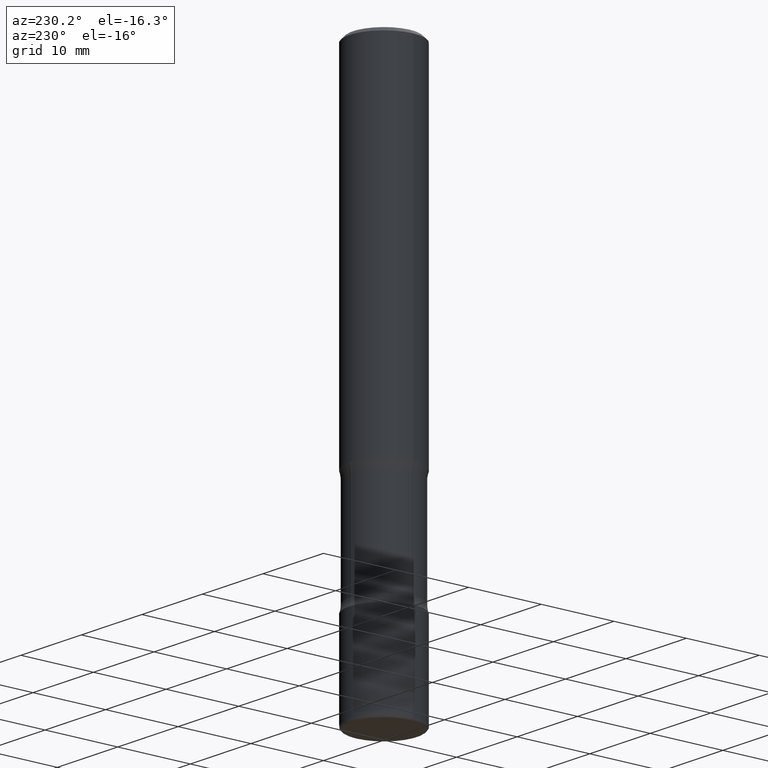
[diagram: clean part render]
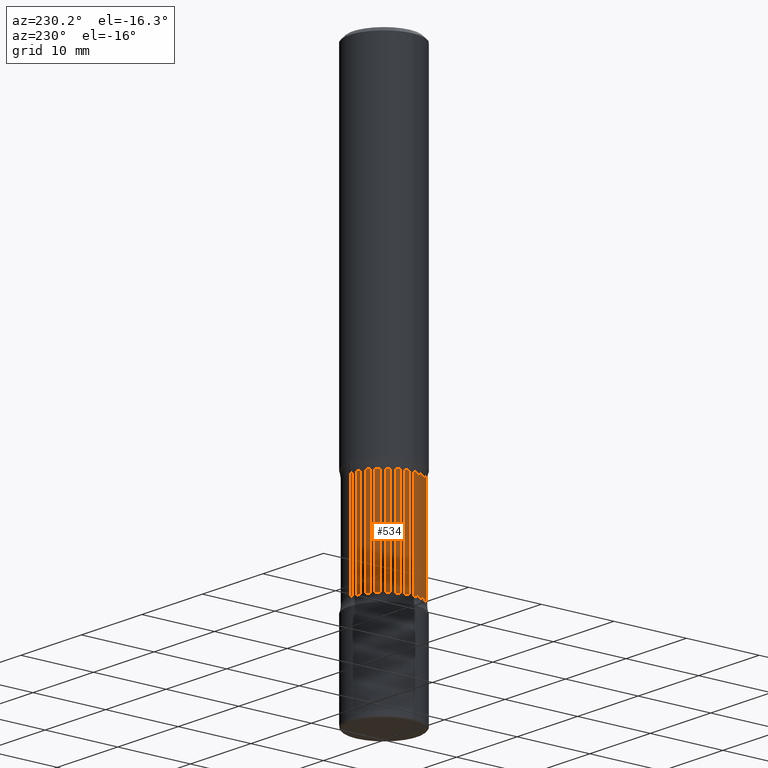
[diagram: same view with one face highlighted and labeled with its STEP entity id]
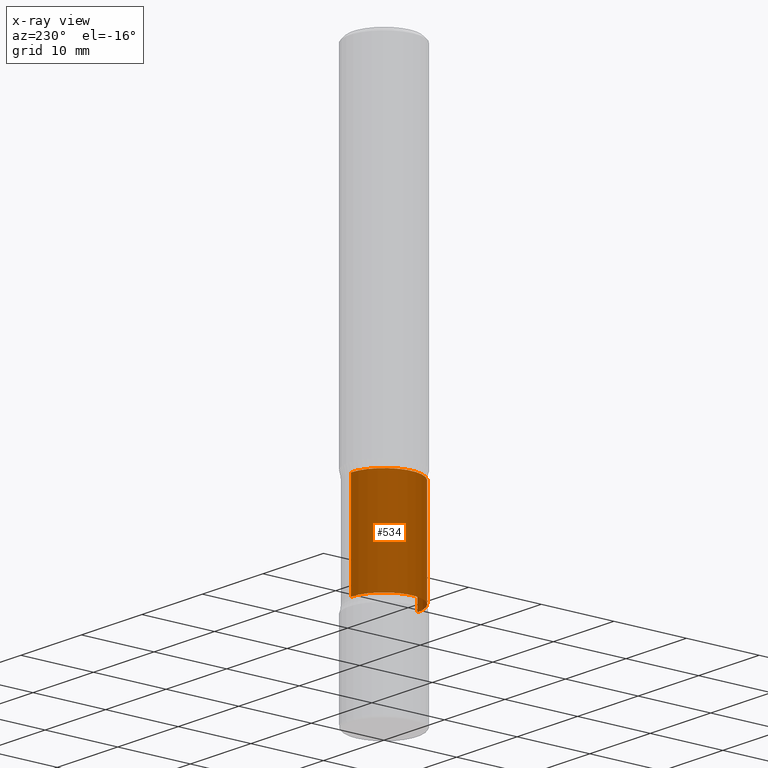
[diagram: x-ray of the same camera — body ghosted, the highlighted face saturated]
A machine part, auxiliary view. The second image highlights one B-rep face of the part: STEP entity #534.
The next image is the same camera in x-ray: the body ghosted, the highlighted face saturated — about 0% of this face is hidden behind the body in this view.
In plain terms, the highlighted cylindrical surface (partial cylindrical patch) has radius 4.572 mm, axis along (0, -0, -1).
Its self-contained STEP definition (entity closure, byte-faithful):
#9 = CARTESIAN_POINT ( 'NONE',  ( 4.636979359799471865E-29, -6.770705658946665508E-15, -1.917646805273080179 ) ) ;
#32 = AXIS2_PLACEMENT_3D ( 'NONE', #325, #123, #759 ) ;
#63 = VERTEX_POINT ( 'NONE', #215 ) ;
#66 = CIRCLE ( 'NONE', #382, 0.1800000000000000488 ) ;
#67 = CARTESIAN_POINT ( 'NONE',  ( 1.256933281983602082E-15, 0.1799999999999896683, -2.994630931690645426 ) ) ;
#76 = FACE_OUTER_BOUND ( 'NONE', #423, .T. ) ;
#82 = LINE ( 'NONE', #340, #173 ) ;
#90 = CARTESIAN_POINT ( 'NONE',  ( 7.367924367309242767E-29, -1.039175976976121566E-14, -2.994630931690644982 ) ) ;
#122 = EDGE_CURVE ( 'NONE', #288, #63, #82, .T. ) ;
#123 = DIRECTION ( 'NONE',  ( 2.535733759228071603E-29, -3.362216788523591023E-15, -1.000000000000000000 ) ) ;
#139 = CARTESIAN_POINT ( 'NONE',  ( 1.256933281983588474E-15, 0.1799999999999915001, -2.457353194726920265 ) ) ;
#173 = VECTOR ( 'NONE', #585, 39.37007874015748143 ) ;
#190 = LINE ( 'NONE', #67, #595 ) ;
#215 = CARTESIAN_POINT ( 'NONE',  ( -1.260616507090458719E-15, -0.1800000000000086253, -2.457353194726918932 ) ) ;
#243 = ORIENTED_EDGE ( 'NONE', *, *, #320, .T. ) ;
#258 = ORIENTED_EDGE ( 'NONE', *, *, #408, .F. ) ;
#284 = DIRECTION ( 'NONE',  ( 6.982962677686266711E-15, 1.000000000000000000, -3.035386659626958343E-15 ) ) ;
#287 = ORIENTED_EDGE ( 'NONE', *, *, #122, .F. ) ;
#288 = VERTEX_POINT ( 'NONE', #540 ) ;
#320 = EDGE_CURVE ( 'NONE', #288, #784, #66, .T. ) ;
#325 = CARTESIAN_POINT ( 'NONE',  ( 6.005531071608665946E-29, -8.585315542441815254E-15, -2.457353194726919376 ) ) ;
#328 = AXIS2_PLACEMENT_3D ( 'NONE', #90, #345, #284 ) ;
#329 = DIRECTION ( 'NONE',  ( 2.535733759228071603E-29, -3.362216788523591023E-15, -1.000000000000000000 ) ) ;
#340 = CARTESIAN_POINT ( 'NONE',  ( -1.234889639598802207E-15, -0.1800000000000104294, -2.994630931690644093 ) ) ;
#345 = DIRECTION ( 'NONE',  ( 2.535733759228071603E-29, -3.362216788523591023E-15, -1.000000000000000000 ) ) ;
#348 = EDGE_CURVE ( 'NONE', #784, #482, #190, .T. ) ;
#382 = AXIS2_PLACEMENT_3D ( 'NONE', #9, #329, #567 ) ;
#408 = EDGE_CURVE ( 'NONE', #63, #482, #649, .T. ) ;
#423 = EDGE_LOOP ( 'NONE', ( #287, #243, #684, #258 ) ) ;
#482 = VERTEX_POINT ( 'NONE', #139 ) ;
#534 = ADVANCED_FACE ( 'NONE', ( #76 ), #587, .T. ) ;
#540 = CARTESIAN_POINT ( 'NONE',  ( -1.260616507090473510E-15, -0.1800000000000068212, -1.917646805273079513 ) ) ;
#567 = DIRECTION ( 'NONE',  ( 6.982962677686266711E-15, 1.000000000000000000, -3.035386659626958343E-15 ) ) ;
#585 = DIRECTION ( 'NONE',  ( 2.535733759228071603E-29, -3.362216788523591023E-15, -1.000000000000000000 ) ) ;
#587 = CYLINDRICAL_SURFACE ( 'NONE', #328, 0.1800000000000000488 ) ;
#595 = VECTOR ( 'NONE', #755, 39.37007874015748143 ) ;
#649 = CIRCLE ( 'NONE', #32, 0.1800000000000000488 ) ;
#684 = ORIENTED_EDGE ( 'NONE', *, *, #348, .T. ) ;
#697 = CARTESIAN_POINT ( 'NONE',  ( 1.256933281983574669E-15, 0.1799999999999933042, -1.917646805273080624 ) ) ;
#755 = DIRECTION ( 'NONE',  ( 2.535733759228071603E-29, -3.362216788523591023E-15, -1.000000000000000000 ) ) ;
#759 = DIRECTION ( 'NONE',  ( 6.982962677686266711E-15, 1.000000000000000000, -3.035386659626958343E-15 ) ) ;
#784 = VERTEX_POINT ( 'NONE', #697 ) ;